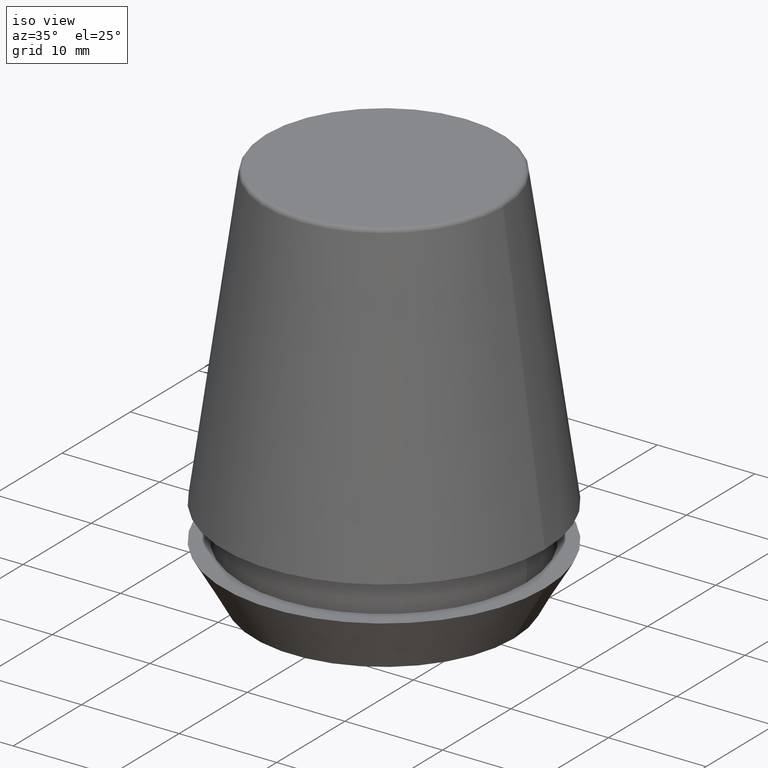
[diagram: clean part render]
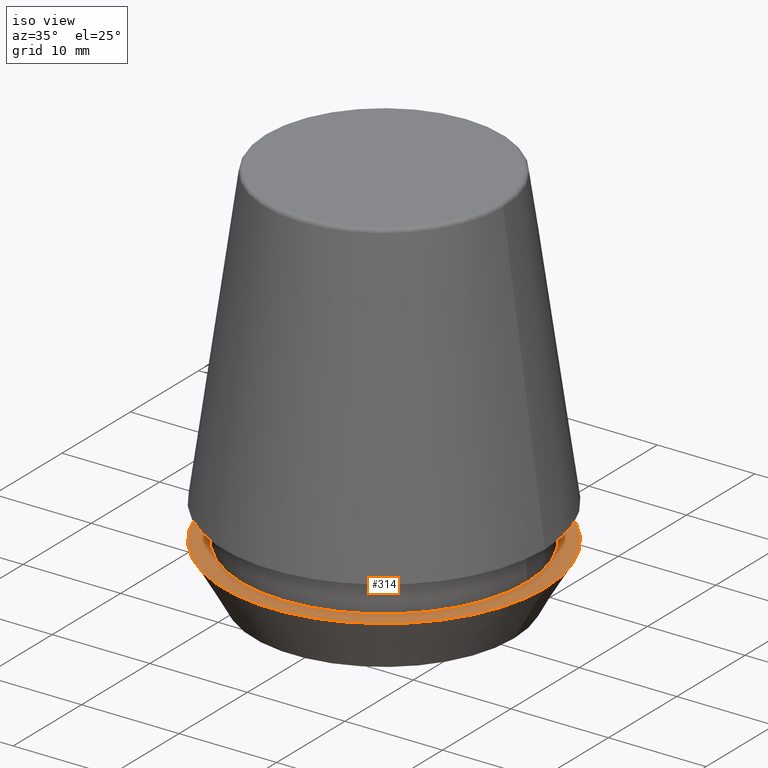
[diagram: same view with one face highlighted and labeled with its STEP entity id]
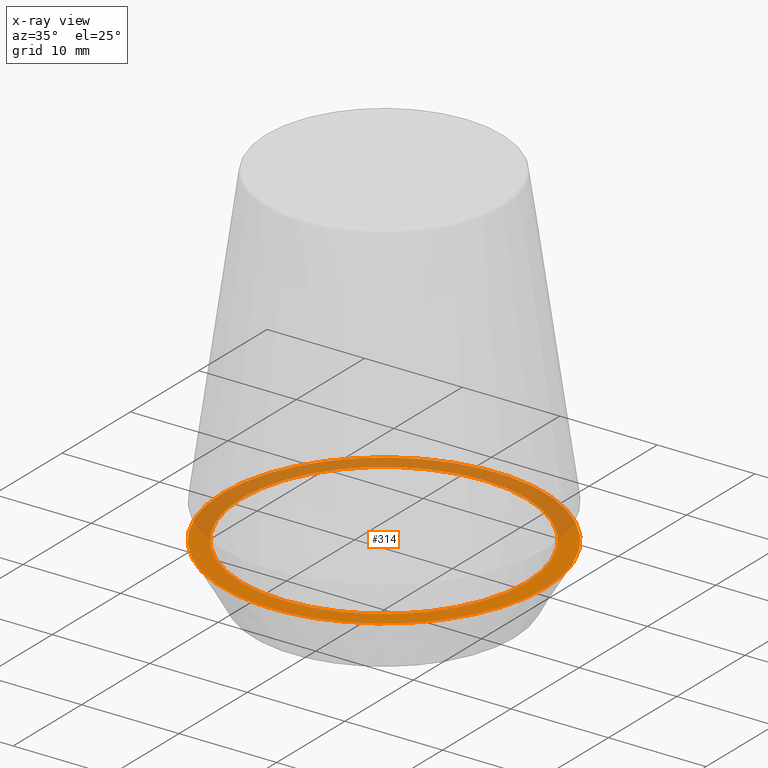
[diagram: x-ray of the same camera — body ghosted, the highlighted face saturated]
A machine part, iso view. The second image highlights one B-rep face of the part: STEP entity #314.
The next image is the same camera in x-ray: the body ghosted, the highlighted face saturated — about 46% of this face is hidden behind the body in this view.
In plain terms, the highlighted planar face has unit normal (0, 0, -1).
Its self-contained STEP definition (entity closure, byte-faithful):
#10 = CIRCLE ( 'NONE', #76, 14.60000000000000000 ) ;
#17 = CARTESIAN_POINT ( 'NONE',  ( 16.50000000000000000, 0.0000000000000000000, 5.500000000000005300 ) ) ;
#19 = CARTESIAN_POINT ( 'NONE',  ( 0.0000000000000000000, 0.0000000000000000000, 5.500000000000005300 ) ) ;
#30 = CIRCLE ( 'NONE', #115, 16.50000000000000000 ) ;
#40 = CARTESIAN_POINT ( 'NONE',  ( 0.0000000000000000000, 0.0000000000000000000, 5.500000000000005300 ) ) ;
#53 = CARTESIAN_POINT ( 'NONE',  ( 0.0000000000000000000, 0.0000000000000000000, 5.500000000000005300 ) ) ;
#61 = AXIS2_PLACEMENT_3D ( 'NONE', #356, #328, #85 ) ;
#63 = EDGE_LOOP ( 'NONE', ( #313, #117 ) ) ;
#76 = AXIS2_PLACEMENT_3D ( 'NONE', #19, #348, #237 ) ;
#79 = AXIS2_PLACEMENT_3D ( 'NONE', #53, #110, #360 ) ;
#85 = DIRECTION ( 'NONE',  ( 1.000000000000000000, 0.0000000000000000000, 0.0000000000000000000 ) ) ;
#87 = AXIS2_PLACEMENT_3D ( 'NONE', #112, #253, #159 ) ;
#110 = DIRECTION ( 'NONE',  ( -0.0000000000000000000, -0.0000000000000000000, 1.000000000000000000 ) ) ;
#112 = CARTESIAN_POINT ( 'NONE',  ( 0.0000000000000000000, 16.50000000000000000, 5.500000000000002700 ) ) ;
#115 = AXIS2_PLACEMENT_3D ( 'NONE', #40, #285, #312 ) ;
#117 = ORIENTED_EDGE ( 'NONE', *, *, #304, .T. ) ;
#139 = EDGE_CURVE ( 'NONE', #211, #199, #10, .T. ) ;
#152 = ORIENTED_EDGE ( 'NONE', *, *, #139, .F. ) ;
#156 = CIRCLE ( 'NONE', #79, 14.60000000000000000 ) ;
#159 = DIRECTION ( 'NONE',  ( -1.000000000000000000, 0.0000000000000000000, -0.0000000000000000000 ) ) ;
#164 = EDGE_LOOP ( 'NONE', ( #196, #152 ) ) ;
#196 = ORIENTED_EDGE ( 'NONE', *, *, #326, .F. ) ;
#199 = VERTEX_POINT ( 'NONE', #204 ) ;
#204 = CARTESIAN_POINT ( 'NONE',  ( 14.60000000000000000, 0.0000000000000000000, 5.500000000000005300 ) ) ;
#211 = VERTEX_POINT ( 'NONE', #359 ) ;
#237 = DIRECTION ( 'NONE',  ( 1.000000000000000000, 0.0000000000000000000, 0.0000000000000000000 ) ) ;
#247 = CIRCLE ( 'NONE', #61, 16.50000000000000000 ) ;
#253 = DIRECTION ( 'NONE',  ( 0.0000000000000000000, 0.0000000000000000000, -1.000000000000000000 ) ) ;
#262 = FACE_OUTER_BOUND ( 'NONE', #63, .T. ) ;
#273 = PLANE ( 'NONE',  #87 ) ;
#285 = DIRECTION ( 'NONE',  ( -0.0000000000000000000, -0.0000000000000000000, 1.000000000000000000 ) ) ;
#286 = VERTEX_POINT ( 'NONE', #17 ) ;
#304 = EDGE_CURVE ( 'NONE', #377, #286, #30, .T. ) ;
#305 = CARTESIAN_POINT ( 'NONE',  ( -16.50000000000000000, 2.020667218593133100E-015, 5.500000000000005300 ) ) ;
#312 = DIRECTION ( 'NONE',  ( 1.000000000000000000, 0.0000000000000000000, 0.0000000000000000000 ) ) ;
#313 = ORIENTED_EDGE ( 'NONE', *, *, #383, .T. ) ;
#314 = ADVANCED_FACE ( 'NONE', ( #337, #262 ), #273, .F. ) ;
#326 = EDGE_CURVE ( 'NONE', #199, #211, #156, .T. ) ;
#328 = DIRECTION ( 'NONE',  ( -0.0000000000000000000, -0.0000000000000000000, 1.000000000000000000 ) ) ;
#337 = FACE_BOUND ( 'NONE', #164, .T. ) ;
#348 = DIRECTION ( 'NONE',  ( -0.0000000000000000000, -0.0000000000000000000, 1.000000000000000000 ) ) ;
#356 = CARTESIAN_POINT ( 'NONE',  ( 0.0000000000000000000, 0.0000000000000000000, 5.500000000000005300 ) ) ;
#359 = CARTESIAN_POINT ( 'NONE',  ( -14.60000000000000000, 1.787984326755135800E-015, 5.500000000000005300 ) ) ;
#360 = DIRECTION ( 'NONE',  ( 1.000000000000000000, 0.0000000000000000000, 0.0000000000000000000 ) ) ;
#377 = VERTEX_POINT ( 'NONE', #305 ) ;
#383 = EDGE_CURVE ( 'NONE', #286, #377, #247, .T. ) ;